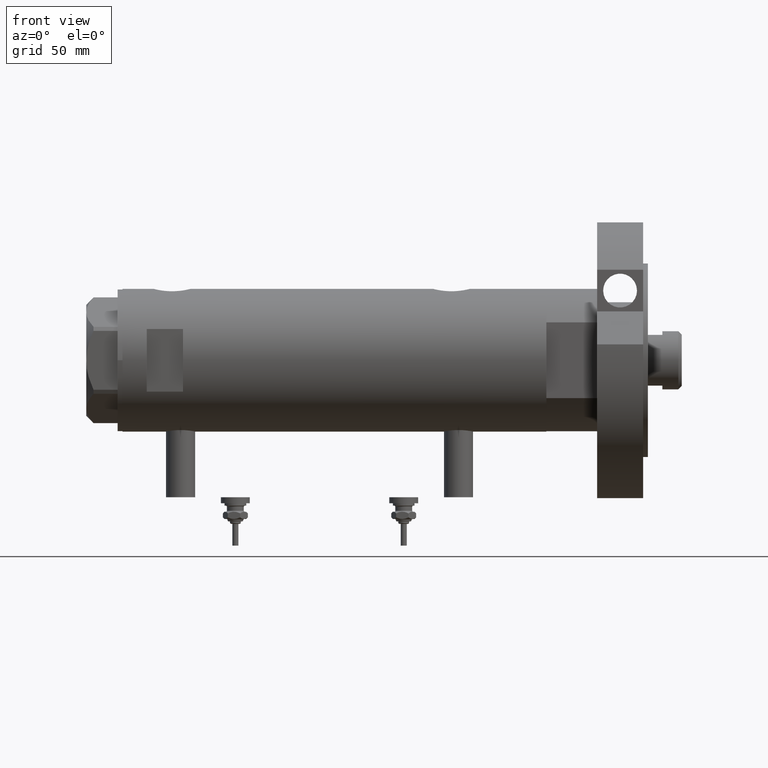
[diagram: clean part render]
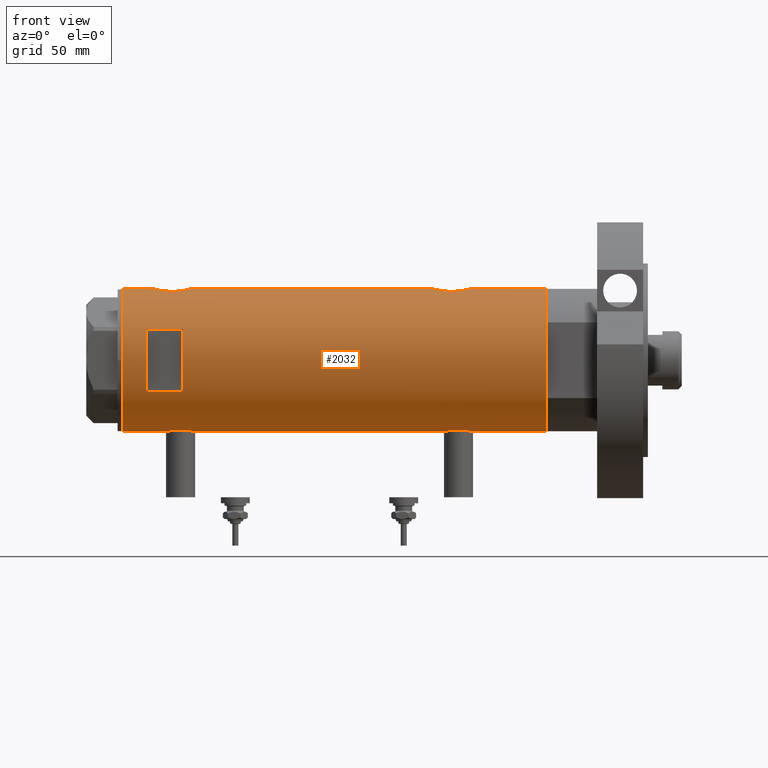
[diagram: same view with one face highlighted and labeled with its STEP entity id]
A machine part, front view. The second image highlights one B-rep face of the part: STEP entity #2032.
In plain terms, the highlighted cylindrical surface (partial cylindrical patch) has radius 29.5 mm, axis along (-1, -0, 0).
Its self-contained STEP definition (entity closure, byte-faithful):
#118 = EDGE_CURVE ( 'NONE', #7479, #4379, #1643, .T. ) ;
#137 = CARTESIAN_POINT ( 'NONE',  ( 29.50000000000000355, 0.000000000000000000, -87.59999999999999432 ) ) ;
#222 = EDGE_LOOP ( 'NONE', ( #899, #1543, #1322, #2964 ) ) ;
#269 = CARTESIAN_POINT ( 'NONE',  ( 28.77424839213763264, -6.509286280845835826, -52.15781251605955759 ) ) ;
#286 = VERTEX_POINT ( 'NONE', #5263 ) ;
#294 = CARTESIAN_POINT ( 'NONE',  ( 28.86290657878784671, -6.099358034152101204, 62.72869329957394058 ) ) ;
#300 = CARTESIAN_POINT ( 'NONE',  ( -29.12379578281188586, -4.705261494361431041, 59.46612042279722488 ) ) ;
#302 = CARTESIAN_POINT ( 'NONE',  ( -28.83028160285195440, -6.250189016175739631, -50.89032996785321927 ) ) ;
#308 = CARTESIAN_POINT ( 'NONE',  ( 29.50000000000000355, -1.363453657738827866E-15, -55.89999999999999858 ) ) ;
#311 = CARTESIAN_POINT ( 'NONE',  ( -29.46613381094001483, -1.427468570127977010, -45.21172459459599935 ) ) ;
#331 = CARTESIAN_POINT ( 'NONE',  ( 29.33743940633120673, -3.100990836771692294, 73.93327512439066140 ) ) ;
#336 = CARTESIAN_POINT ( 'NONE',  ( -28.85437274499025762, -6.138402965889063978, 62.37243403294917954 ) ) ;
#344 = CARTESIAN_POINT ( 'NONE',  ( 28.77541267587658780, -6.504036106227640168, -44.63371449864085605 ) ) ;
#347 = CARTESIAN_POINT ( 'NONE',  ( -29.25361239466581154, -3.820294933898107814, -46.33642010285959145 ) ) ;
#373 = CARTESIAN_POINT ( 'NONE',  ( 29.08168479815707386, -4.954011967599708299, 61.46372631484727833 ) ) ;
#385 = CARTESIAN_POINT ( 'NONE',  ( 28.89374408016308848, -5.952042782108791563, -43.83015462974033483 ) ) ;
#395 = VERTEX_POINT ( 'NONE', #4335 ) ;
#417 = CARTESIAN_POINT ( 'NONE',  ( -29.50000000000000355, -1.989795151372050188E-15, -45.04999999999999005 ) ) ;
#470 = DIRECTION ( 'NONE',  ( 0.000000000000000000, 0.000000000000000000, 1.000000000000000000 ) ) ;
#493 = CARTESIAN_POINT ( 'NONE',  ( 0.000000000000000000, 0.000000000000000000, -87.59999999999999432 ) ) ;
#571 = ORIENTED_EDGE ( 'NONE', *, *, #3206, .F. ) ;
#647 = LINE ( 'NONE', #2968, #5458 ) ;
#683 = CARTESIAN_POINT ( 'NONE',  ( -28.84137202824161861, -6.198846007008993908, -52.12388261123874145 ) ) ;
#800 = CARTESIAN_POINT ( 'NONE',  ( 29.43922820968270671, -1.954457150219038208, -41.14210652754225350 ) ) ;
#839 = CARTESIAN_POINT ( 'NONE',  ( 28.59279484545186989, -7.260293545345763100, -50.34406557984473096 ) ) ;
#852 = CARTESIAN_POINT ( 'NONE',  ( -29.50000000000000355, 3.612708057484692393E-15, 87.59999999999999432 ) ) ;
#869 = CARTESIAN_POINT ( 'NONE',  ( -29.50000000000000355, 3.612708057484692393E-15, -87.59999999999999432 ) ) ;
#872 = CARTESIAN_POINT ( 'NONE',  ( 28.72051071455672044, -6.739402597165490505, 63.77281026296248712 ) ) ;
#888 = CARTESIAN_POINT ( 'NONE',  ( 29.31438578683259522, -3.335040812377227937, -55.13547276843772238 ) ) ;
#899 = ORIENTED_EDGE ( 'NONE', *, *, #2767, .F. ) ;
#915 = CARTESIAN_POINT ( 'NONE',  ( -29.25427426731712544, -3.815048240656437439, 58.63259231846663511 ) ) ;
#946 = CARTESIAN_POINT ( 'NONE',  ( 28.54678862679669749, -7.438514536388028731, 68.08958274320792725 ) ) ;
#960 = CARTESIAN_POINT ( 'NONE',  ( 29.40378957563275009, -2.423455993307766398, -41.28550539884014370 ) ) ;
#971 = EDGE_CURVE ( 'NONE', #2556, #4912, #4536, .T. ) ;
#990 = CARTESIAN_POINT ( 'NONE',  ( 28.86327882047615034, -6.097569254709694242, 71.47367090911446041 ) ) ;
#994 = CARTESIAN_POINT ( 'NONE',  ( 29.50000000000000355, 0.000000000000000000, -87.59999999999999432 ) ) ;
#996 = CARTESIAN_POINT ( 'NONE',  ( -29.21016169868140366, -4.135295259288787051, 68.30390088086507205 ) ) ;
#1032 = DIRECTION ( 'NONE',  ( 1.000000000000000000, 0.000000000000000000, 0.000000000000000000 ) ) ;
#1066 = CARTESIAN_POINT ( 'NONE',  ( -29.08006251441183565, -4.961575945539723698, 67.40618502052524263 ) ) ;
#1101 = ORIENTED_EDGE ( 'NONE', *, *, #6471, .F. ) ;
#1138 = DIRECTION ( 'NONE',  ( 0.000000000000000000, 0.000000000000000000, 1.000000000000000000 ) ) ;
#1147 = DIRECTION ( 'NONE',  ( 0.000000000000000000, 0.000000000000000000, 1.000000000000000000 ) ) ;
#1187 = AXIS2_PLACEMENT_3D ( 'NONE', #493, #6383, #2817 ) ;
#1204 = VERTEX_POINT ( 'NONE', #4288 ) ;
#1258 = LINE ( 'NONE', #137, #3866 ) ;
#1322 = ORIENTED_EDGE ( 'NONE', *, *, #6491, .F. ) ;
#1376 = CARTESIAN_POINT ( 'NONE',  ( -29.45797511864983420, -1.625450914296658667, 57.55094872469953060 ) ) ;
#1382 = CARTESIAN_POINT ( 'NONE',  ( 29.50000000000000711, -0.4976091310423220726, -55.89999999999999858 ) ) ;
#1402 = ORIENTED_EDGE ( 'NONE', *, *, #6194, .T. ) ;
#1417 = CARTESIAN_POINT ( 'NONE',  ( 28.53399451186755442, -7.487442594623181513, -47.90102514498886421 ) ) ;
#1433 = CARTESIAN_POINT ( 'NONE',  ( 29.50000000000000355, 0.000000000000000000, -87.59999999999999432 ) ) ;
#1444 = CARTESIAN_POINT ( 'NONE',  ( 28.54347630091234933, -7.451827970232792531, 66.11943218216043761 ) ) ;
#1449 = CARTESIAN_POINT ( 'NONE',  ( -29.33428005013169226, -3.127775714777723426, 58.18506796127407199 ) ) ;
#1463 = LINE ( 'NONE', #3715, #3743 ) ;
#1496 = CARTESIAN_POINT ( 'NONE',  ( -29.38738983525000137, -2.582042051636497693, 57.90464828404618913 ) ) ;
#1501 = CARTESIAN_POINT ( 'NONE',  ( 29.26166309680877475, -3.765013078516705303, -54.90510232053061657 ) ) ;
#1524 = CARTESIAN_POINT ( 'NONE',  ( 29.40305664607911140, -2.432276947006145829, 59.98852198993411378 ) ) ;
#1530 = CARTESIAN_POINT ( 'NONE',  ( -28.99856997507319534, -5.420860550814439627, 60.46276987854197671 ) ) ;
#1539 = CARTESIAN_POINT ( 'NONE',  ( -29.14490888978862415, -4.565669626908229084, -47.02701820123782994 ) ) ;
#1543 = ORIENTED_EDGE ( 'NONE', *, *, #4383, .F. ) ;
#1557 = CARTESIAN_POINT ( 'NONE',  ( 29.31438578683260232, -3.335040812377226604, 60.36452723156224920 ) ) ;
#1600 = CARTESIAN_POINT ( 'NONE',  ( 29.31311917412636348, -3.322476152549144413, 73.82842985264291258 ) ) ;
#1603 = VERTEX_POINT ( 'NONE', #2215 ) ;
#1612 = VECTOR ( 'NONE', #2369, 1000.000000000000000 ) ;
#1643 = LINE ( 'NONE', #994, #2427 ) ;
#1673 = CARTESIAN_POINT ( 'NONE',  ( -29.45566469296798928, -1.628675872921093726, 69.63756032628675996 ) ) ;
#1734 = B_SPLINE_CURVE_WITH_KNOTS ( 'NONE', 3,
 ( #4341, #3346, #3819, #6684, #2770, #331, #1600, #5110, #6268, #2133, #2660, #3266, #4997, #3847, #990, #3231, #4428, #2700, #4457, #5689, #946, #5614, #4385, #6830, #1444, #5577, #6113, #872, #6184, #294, #7340, #2100, #6763, #5042, #373, #7377, #3197, #6791, #1557, #1524, #3886, #2626, #7298, #6223 ),
 .UNSPECIFIED., .F., .F.,
 ( 4, 2, 2, 2, 2, 2, 2, 2, 2, 2, 2, 2, 2, 2, 2, 2, 2, 2, 2, 2, 2, 4 ),
 ( 0.02354540741801906811, 0.02501659793198017859, 0.02648778844594128906, 0.02722338370292184256, 0.02795897895990239954, 0.02943016947386351001, 0.03016576473084408433, 0.03090135998782465171, 0.03237255050178579341, 0.03384374101574693511, 0.03457933627272750943, 0.03531493152970807681, 0.03678612204366921851, 0.03825731255763036021, 0.03972850307159149497, 0.04046409832857204847, 0.04119969358555261585, 0.04193528884253318323, 0.04267088409951375061, 0.04414207461347488537, 0.04561326512743602707, 0.04708445564139716183 ),
 .UNSPECIFIED. ) ;
#1833 = CARTESIAN_POINT ( 'NONE',  ( -28.87532468301956357, -6.038983942005355487, -52.92329367688535768 ) ) ;
#1835 = ORIENTED_EDGE ( 'NONE', *, *, #7114, .F. ) ;
#1871 = CARTESIAN_POINT ( 'NONE',  ( 0.000000000000000000, 0.000000000000000000, 77.60000000000002274 ) ) ;
#1911 = CARTESIAN_POINT ( 'NONE',  ( 29.50000000000000355, -1.363453657738827866E-15, -55.89999999999999858 ) ) ;
#1915 = CARTESIAN_POINT ( 'NONE',  ( -28.96147498926092112, -5.613273026676372623, -54.07892698342580218 ) ) ;
#1950 = DIRECTION ( 'NONE',  ( -0.000000000000000000, 0.000000000000000000, -1.000000000000000000 ) ) ;
#1953 = CARTESIAN_POINT ( 'NONE',  ( 28.53070445389874976, -7.499926890973428684, -48.15046579487084699 ) ) ;
#2002 = CARTESIAN_POINT ( 'NONE',  ( 28.59337635119608123, -7.258007499531542450, -46.44783774348638872 ) ) ;
#2013 = VERTEX_POINT ( 'NONE', #4500 ) ;
#2032 = ADVANCED_FACE ( 'NONE', ( #6160, #6271 ), #2662, .T. ) ;
#2036 = CARTESIAN_POINT ( 'NONE',  ( 28.54347630091233867, -7.451827970232786313, -49.38056781783959792 ) ) ;
#2045 = CARTESIAN_POINT ( 'NONE',  ( 0.000000000000000000, 0.000000000000000000, 62.60000000000011511 ) ) ;
#2051 = CIRCLE ( 'NONE', #1187, 29.50000000000000355 ) ;
#2074 = CARTESIAN_POINT ( 'NONE',  ( -29.37136442049237317, -2.777615426151012201, -45.68634887377884013 ) ) ;
#2100 = CARTESIAN_POINT ( 'NONE',  ( 28.95592074821773210, -5.641779806288288235, 62.15226504197970314 ) ) ;
#2106 = AXIS2_PLACEMENT_3D ( 'NONE', #2045, #3220, #6050 ) ;
#2107 = CARTESIAN_POINT ( 'NONE',  ( -29.37055817176824490, -2.766456155496578084, 57.99186392411088775 ) ) ;
#2111 = VECTOR ( 'NONE', #3090, 1000.000000000000000 ) ;
#2133 = CARTESIAN_POINT ( 'NONE',  ( 29.14531914445117167, -4.579221598645962565, 73.05990232992806455 ) ) ;
#2137 = CARTESIAN_POINT ( 'NONE',  ( -29.41741605749265887, -2.213861184585002917, 69.44831174451371680 ) ) ;
#2169 = CARTESIAN_POINT ( 'NONE',  ( -28.96072448608914840, -5.617106371651694907, 66.37082731660440515 ) ) ;
#2207 = CARTESIAN_POINT ( 'NONE',  ( 29.50000000000000355, -8.867894669064240341E-21, 74.59999999999999432 ) ) ;
#2215 = CARTESIAN_POINT ( 'NONE',  ( 12.96148139681573319, -26.49999999999998934, 77.60000000000002274 ) ) ;
#2220 = CARTESIAN_POINT ( 'NONE',  ( 29.50000000000000355, -8.867894669064240341E-21, -40.89999999999999858 ) ) ;
#2228 = B_SPLINE_CURVE_WITH_KNOTS ( 'NONE', 3,
 ( #4435, #3703, #6120, #1376, #5620, #1496, #2107, #1449, #6767, #915, #7227, #300, #2631, #1530, #2706, #4964, #5047, #5581, #336, #3851, #5697, #3893, #6380, #2244, #5230, #2813, #2169, #5118, #4579, #1066, #4505, #6228, #996, #6912, #4041, #6306, #2137, #2742, #1673, #4465, #3939, #6949, #3313 ),
 .UNSPECIFIED., .F., .F.,
 ( 4, 2, 2, 2, 2, 2, 2, 2, 2, 1, 2, 2, 2, 2, 2, 2, 2, 2, 2, 2, 2, 4 ),
 ( 0.01959598605283711936, 0.02082041500883364399, 0.02204484396483016861, 0.02265705844282843093, 0.02326927292082668977, 0.02449370187682321787, 0.02571813083281974943, 0.02694255978881627753, 0.02755477426681453290, 0.02816698874481278828, 0.02877920322281106447, 0.02939141770080933719, 0.03061584665680588957, 0.03184027561280244195, 0.03306470456879899433, 0.03367691904679727399, 0.03428913352479554671, 0.03551356248079207134, 0.03673799143678858903, 0.03735020591478684787, 0.03796242039278510672, 0.03918684934878163828 ),
 .UNSPECIFIED. ) ;
#2244 = CARTESIAN_POINT ( 'NONE',  ( -28.83909499632370199, -6.209928350489659188, 64.41617781082960903 ) ) ;
#2369 = DIRECTION ( 'NONE',  ( 0.000000000000000000, 0.000000000000000000, 1.000000000000000000 ) ) ;
#2427 = VECTOR ( 'NONE', #6187, 1000.000000000000000 ) ;
#2514 = CARTESIAN_POINT ( 'NONE',  ( -29.50000000000000355, 3.612708057484692393E-15, -87.59999999999999432 ) ) ;
#2550 = CARTESIAN_POINT ( 'NONE',  ( -29.05872136210574297, -5.084685578900233871, -47.65990008091242203 ) ) ;
#2556 = VERTEX_POINT ( 'NONE', #5715 ) ;
#2558 = CARTESIAN_POINT ( 'NONE',  ( 29.14531914445117522, -4.579221598645967006, -42.44009767007190703 ) ) ;
#2604 = CARTESIAN_POINT ( 'NONE',  ( 28.86290657878785737, -6.099358034152089658, -52.77130670042607363 ) ) ;
#2626 = CARTESIAN_POINT ( 'NONE',  ( 29.48742104091791560, -0.9879539515379935910, 59.64904301646021167 ) ) ;
#2631 = CARTESIAN_POINT ( 'NONE',  ( -29.07948744859177026, -4.968520850090769159, 59.78663632621105961 ) ) ;
#2637 = CARTESIAN_POINT ( 'NONE',  ( 28.95619957017310497, -5.640369376407877056, -43.45060273509821513 ) ) ;
#2660 = CARTESIAN_POINT ( 'NONE',  ( 29.08294968506023181, -4.955368226349210481, 72.75096718198464885 ) ) ;
#2662 = CYLINDRICAL_SURFACE ( 'NONE', #3305, 29.50000000000000355 ) ;
#2670 = CARTESIAN_POINT ( 'NONE',  ( 29.14351131874355261, -4.576283785862462317, -54.34705324848517449 ) ) ;
#2677 = EDGE_CURVE ( 'NONE', #6694, #1603, #3597, .T. ) ;
#2700 = CARTESIAN_POINT ( 'NONE',  ( 28.62986945670069261, -7.114680680403731472, 69.52393776006691439 ) ) ;
#2706 = CARTESIAN_POINT ( 'NONE',  ( -28.96147498926091046, -5.613273026676365518, 60.82107301657418930 ) ) ;
#2712 = CARTESIAN_POINT ( 'NONE',  ( 28.98816846638396072, -5.474212100855873508, -43.26747840116693311 ) ) ;
#2716 = CARTESIAN_POINT ( 'NONE',  ( -29.50000000000000355, -1.989795151372050188E-15, -45.04999999999999005 ) ) ;
#2742 = CARTESIAN_POINT ( 'NONE',  ( -29.43130053621386111, -2.021711243143687664, 69.51755045960182144 ) ) ;
#2764 = ORIENTED_EDGE ( 'NONE', *, *, #971, .F. ) ;
#2767 = EDGE_CURVE ( 'NONE', #6003, #6694, #7098, .T. ) ;
#2770 = CARTESIAN_POINT ( 'NONE',  ( 29.40378957563274298, -2.423455993307769951, 74.21449460115982788 ) ) ;
#2813 = CARTESIAN_POINT ( 'NONE',  ( -28.89828397447510255, -5.929977241120604425, 65.61611952241995027 ) ) ;
#2817 = DIRECTION ( 'NONE',  ( 1.000000000000000000, 0.000000000000000000, 0.000000000000000000 ) ) ;
#2819 = VECTOR ( 'NONE', #470, 1000.000000000000000 ) ;
#2825 = VERTEX_POINT ( 'NONE', #852 ) ;
#2964 = ORIENTED_EDGE ( 'NONE', *, *, #2677, .F. ) ;
#2967 = CARTESIAN_POINT ( 'NONE',  ( -28.89999183068148625, -5.919812056825922042, -53.31500238835418060 ) ) ;
#2968 = CARTESIAN_POINT ( 'NONE',  ( -29.50000000000000355, 3.612708057484692393E-15, -87.59999999999999432 ) ) ;
#2992 = CARTESIAN_POINT ( 'NONE',  ( -29.43333839972900634, -2.017691896334575574, -57.22935989047839200 ) ) ;
#2994 = DIRECTION ( 'NONE',  ( 0.000000000000000000, 0.000000000000000000, 1.000000000000000000 ) ) ;
#3090 = DIRECTION ( 'NONE',  ( -0.000000000000000000, -0.000000000000000000, -1.000000000000000000 ) ) ;
#3131 = CIRCLE ( 'NONE', #7426, 29.50000000000000355 ) ;
#3137 = CIRCLE ( 'NONE', #6691, 29.50000000000000355 ) ;
#3167 = CARTESIAN_POINT ( 'NONE',  ( 29.26065241255352589, -3.756597382275444819, -41.90395565180811133 ) ) ;
#3197 = CARTESIAN_POINT ( 'NONE',  ( 29.17410189149616428, -4.377709617224024186, 61.00524172523977740 ) ) ;
#3198 = ORIENTED_EDGE ( 'NONE', *, *, #6752, .F. ) ;
#3201 = CARTESIAN_POINT ( 'NONE',  ( 0.000000000000000000, 0.000000000000000000, -87.59999999999999432 ) ) ;
#3206 = EDGE_CURVE ( 'NONE', #5723, #4379, #6244, .T. ) ;
#3210 = CARTESIAN_POINT ( 'NONE',  ( 29.43916859571211120, -1.954329820671499407, -55.65764479242087504 ) ) ;
#3220 = DIRECTION ( 'NONE',  ( -0.000000000000000000, -4.625929269271487689E-15, 1.000000000000000000 ) ) ;
#3231 = CARTESIAN_POINT ( 'NONE',  ( 28.77541267587657003, -6.504036106227640168, 70.86628550135910132 ) ) ;
#3237 = CARTESIAN_POINT ( 'NONE',  ( -28.83909499632370199, -6.209928350489668958, -50.48382218917042508 ) ) ;
#3245 = CARTESIAN_POINT ( 'NONE',  ( -29.12311479234994849, -4.702282052053738504, -47.17776471113516124 ) ) ;
#3266 = CARTESIAN_POINT ( 'NONE',  ( 28.98816846638396427, -5.474212100855878838, 72.23252159883305978 ) ) ;
#3278 = CARTESIAN_POINT ( 'NONE',  ( 28.62983003203746080, -7.114781472982439681, -50.82273058853737524 ) ) ;
#3305 = AXIS2_PLACEMENT_3D ( 'NONE', #3201, #6186, #1032 ) ;
#3313 = CARTESIAN_POINT ( 'NONE',  ( -29.50000000000000355, -3.685106651658548747E-16, 69.84999999999999432 ) ) ;
#3346 = CARTESIAN_POINT ( 'NONE',  ( 29.50000000000001066, -0.4905639552620957300, 74.59999999999998010 ) ) ;
#3405 = LINE ( 'NONE', #3513, #2819 ) ;
#3432 = VECTOR ( 'NONE', #5934, 1000.000000000000000 ) ;
#3495 = CARTESIAN_POINT ( 'NONE',  ( -29.31475612970062627, -3.305202271067059883, -56.60847868843855224 ) ) ;
#3513 = CARTESIAN_POINT ( 'NONE',  ( -29.50000000000000355, 3.612708057484692393E-15, -87.59999999999999432 ) ) ;
#3579 = CARTESIAN_POINT ( 'NONE',  ( -29.50000000000000711, -0.4084468586314279337, -57.55000000000000426 ) ) ;
#3597 = LINE ( 'NONE', #4216, #3432 ) ;
#3646 = ORIENTED_EDGE ( 'NONE', *, *, #4846, .F. ) ;
#3703 = CARTESIAN_POINT ( 'NONE',  ( -29.50000000000000711, -0.4084468586314314309, 57.35000000000000142 ) ) ;
#3708 = CARTESIAN_POINT ( 'NONE',  ( 28.55627543367308618, -7.402134446380870259, -47.16780349681763340 ) ) ;
#3715 = CARTESIAN_POINT ( 'NONE',  ( 29.50000000000000355, 0.000000000000000000, -87.59999999999999432 ) ) ;
#3721 = CARTESIAN_POINT ( 'NONE',  ( -29.50000000000000355, 3.612706708267620518E-15, -57.55000000000000426 ) ) ;
#3743 = VECTOR ( 'NONE', #4905, 1000.000000000000000 ) ;
#3745 = CARTESIAN_POINT ( 'NONE',  ( 28.53064705443910043, -7.500145243772282200, -48.89244703291117844 ) ) ;
#3790 = CARTESIAN_POINT ( 'NONE',  ( 28.54678862679669038, -7.438514536388029619, -47.41041725679210828 ) ) ;
#3819 = CARTESIAN_POINT ( 'NONE',  ( 29.48775985681159284, -0.9798361908152555255, 74.55230443881325186 ) ) ;
#3847 = CARTESIAN_POINT ( 'NONE',  ( 28.89374408016309914, -5.952042782108793340, 71.66984537025965096 ) ) ;
#3851 = CARTESIAN_POINT ( 'NONE',  ( -28.84137202824161150, -6.198846007008987691, 62.77611738876123582 ) ) ;
#3858 = CARTESIAN_POINT ( 'NONE',  ( 29.31311917412636348, -3.322476152549152406, -41.67157014735705189 ) ) ;
#3866 = VECTOR ( 'NONE', #2994, 1000.000000000000000 ) ;
#3886 = CARTESIAN_POINT ( 'NONE',  ( 29.43916859571210409, -1.954329820671502960, 59.84235520757910365 ) ) ;
#3893 = CARTESIAN_POINT ( 'NONE',  ( -28.83034328164762528, -6.249904501012242264, 63.39085460435941854 ) ) ;
#3936 = ORIENTED_EDGE ( 'NONE', *, *, #6843, .T. ) ;
#3939 = CARTESIAN_POINT ( 'NONE',  ( -29.49128673965871172, -0.8227026017531454682, 69.80924441072093600 ) ) ;
#4041 = CARTESIAN_POINT ( 'NONE',  ( -29.33479068874799722, -3.136645782783865410, 69.02155254614469015 ) ) ;
#4078 = CARTESIAN_POINT ( 'NONE',  ( -29.33428005013168871, -3.127775714777722982, -56.71493203872592659 ) ) ;
#4088 = EDGE_LOOP ( 'NONE', ( #1101, #3936, #5845, #571, #4255, #1835, #1402, #3198, #6021, #3646, #4572, #2764 ) ) ;
#4118 = CARTESIAN_POINT ( 'NONE',  ( -28.91427970886711307, -5.849862889315922132, -53.50993133128852008 ) ) ;
#4174 = EDGE_CURVE ( 'NONE', #4912, #2013, #3405, .T. ) ;
#4216 = CARTESIAN_POINT ( 'NONE',  ( 12.96148139681573319, -26.49999999999999645, -87.59999999999999432 ) ) ;
#4241 = LINE ( 'NONE', #6580, #2111 ) ;
#4255 = ORIENTED_EDGE ( 'NONE', *, *, #5828, .T. ) ;
#4280 = CARTESIAN_POINT ( 'NONE',  ( 29.05028789344173745, -5.134328181356786480, -53.87246457606267569 ) ) ;
#4288 = CARTESIAN_POINT ( 'NONE',  ( -12.96148139681573319, -26.49999999999998934, 77.60000000000002274 ) ) ;
#4324 = EDGE_CURVE ( 'NONE', #395, #2825, #6469, .T. ) ;
#4335 = CARTESIAN_POINT ( 'NONE',  ( -29.50000000000000355, -3.685106651658548747E-16, 69.84999999999999432 ) ) ;
#4341 = CARTESIAN_POINT ( 'NONE',  ( 29.50000000000000355, -8.867894669064240341E-21, 74.59999999999999432 ) ) ;
#4355 = CARTESIAN_POINT ( 'NONE',  ( -29.43130053621386111, -2.021711243143700543, -45.38244954039817003 ) ) ;
#4379 = VERTEX_POINT ( 'NONE', #1911 ) ;
#4383 = EDGE_CURVE ( 'NONE', #1204, #6003, #4241, .T. ) ;
#4385 = CARTESIAN_POINT ( 'NONE',  ( 28.53070445389874621, -7.499926890973428684, 67.34953420512916011 ) ) ;
#4397 = CARTESIAN_POINT ( 'NONE',  ( 29.50000000000000355, -8.867894669064240341E-21, -40.89999999999999858 ) ) ;
#4428 = CARTESIAN_POINT ( 'NONE',  ( 28.72151714661535848, -6.735173278284142917, 70.43640470570873902 ) ) ;
#4435 = CARTESIAN_POINT ( 'NONE',  ( -29.50000000000000355, 3.612706708236066082E-15, 57.34999999999998721 ) ) ;
#4437 = CARTESIAN_POINT ( 'NONE',  ( 12.96148139681573319, -26.49999999999998934, 62.59999999999998721 ) ) ;
#4457 = CARTESIAN_POINT ( 'NONE',  ( 28.59337635119608123, -7.258007499531540674, 69.05216225651359707 ) ) ;
#4465 = CARTESIAN_POINT ( 'NONE',  ( -29.46613381094001127, -1.427468570127964798, 69.68827540540398502 ) ) ;
#4500 = CARTESIAN_POINT ( 'NONE',  ( -29.50000000000000355, 3.612706708236066082E-15, 57.34999999999998721 ) ) ;
#4505 = CARTESIAN_POINT ( 'NONE',  ( -29.12311479234994493, -4.702282052053730510, 67.72223528886479471 ) ) ;
#4536 = B_SPLINE_CURVE_WITH_KNOTS ( 'NONE', 3,
 ( #3721, #3579, #7020, #5917, #2992, #4615, #6950, #4078, #3495, #5841, #6255, #7251, #6865, #5142, #1915, #4118, #2967, #1833, #5312, #683, #6506, #5550, #302, #3237, #5006, #7347, #6654, #5461, #2550, #6085, #3245, #1539, #6169, #347, #7354, #2074, #4942, #4355, #7314, #311, #5518, #5591, #2716 ),
 .UNSPECIFIED., .F., .F.,
 ( 4, 2, 2, 2, 2, 2, 2, 2, 2, 1, 2, 2, 2, 2, 2, 2, 2, 2, 2, 2, 2, 4 ),
 ( 0.01959598605283713324, 0.02082041500883365093, 0.02204484396483016515, 0.02265705844282842399, 0.02326927292082667936, 0.02449370187682318317, 0.02571813083281968698, 0.02694255978881619079, 0.02755477426681445310, 0.02816698874481271542, 0.02877920322281097426, 0.02939141770080923657, 0.03061584665680577855, 0.03184027561280232399, 0.03306470456879886943, 0.03367691904679714215, 0.03428913352479541488, 0.03551356248079197420, 0.03673799143678854046, 0.03735020591478682705, 0.03796242039278510672, 0.03918684934878167297 ),
 .UNSPECIFIED. ) ;
#4572 = ORIENTED_EDGE ( 'NONE', *, *, #4174, .F. ) ;
#4579 = CARTESIAN_POINT ( 'NONE',  ( -29.05872136210575363, -5.084685578900223213, 67.24009991908759787 ) ) ;
#4615 = CARTESIAN_POINT ( 'NONE',  ( -29.38738983525001558, -2.582042051636497693, -56.99535171595380945 ) ) ;
#4846 = EDGE_CURVE ( 'NONE', #2013, #395, #2228, .T. ) ;
#4905 = DIRECTION ( 'NONE',  ( 0.000000000000000000, 0.000000000000000000, 1.000000000000000000 ) ) ;
#4912 = VERTEX_POINT ( 'NONE', #417 ) ;
#4923 = VERTEX_POINT ( 'NONE', #2207 ) ;
#4939 = CARTESIAN_POINT ( 'NONE',  ( 28.89374847711160399, -5.952001739005051917, -52.96983981079635129 ) ) ;
#4942 = CARTESIAN_POINT ( 'NONE',  ( -29.41741605749266952, -2.213861184585005137, -45.45168825548628178 ) ) ;
#4964 = CARTESIAN_POINT ( 'NONE',  ( -28.91427970886709886, -5.849862889315915915, 61.39006866871145718 ) ) ;
#4970 = CARTESIAN_POINT ( 'NONE',  ( 28.98740664105171305, -5.478212189394655596, -53.52819516185792281 ) ) ;
#4997 = CARTESIAN_POINT ( 'NONE',  ( 28.95619957017310853, -5.640369376407880608, 72.04939726490175644 ) ) ;
#5006 = CARTESIAN_POINT ( 'NONE',  ( -28.87288655002252113, -6.050870399762851015, -49.68249459278194990 ) ) ;
#5042 = CARTESIAN_POINT ( 'NONE',  ( 29.05028789344172324, -5.134328181356783816, 61.62753542393731010 ) ) ;
#5047 = CARTESIAN_POINT ( 'NONE',  ( -28.89999183068147559, -5.919812056825914048, 61.58499761164581798 ) ) ;
#5095 = VERTEX_POINT ( 'NONE', #5679 ) ;
#5110 = CARTESIAN_POINT ( 'NONE',  ( 29.26065241255351523, -3.756597382275435493, 73.59604434819190999 ) ) ;
#5118 = CARTESIAN_POINT ( 'NONE',  ( -28.99772237063718094, -5.425436006677728074, 66.72962674552641715 ) ) ;
#5142 = CARTESIAN_POINT ( 'NONE',  ( -28.99856997507319534, -5.420860550814444956, -54.43723012145802187 ) ) ;
#5197 = CARTESIAN_POINT ( 'NONE',  ( 0.000000000000000000, 0.000000000000000000, 87.59999999999999432 ) ) ;
#5230 = CARTESIAN_POINT ( 'NONE',  ( -28.87288655002252113, -6.050870399762837692, 65.21750540721804157 ) ) ;
#5263 = CARTESIAN_POINT ( 'NONE',  ( 29.50000000000000355, -2.136503572369537054E-15, 59.59999999999999432 ) ) ;
#5312 = CARTESIAN_POINT ( 'NONE',  ( -28.85437274499025406, -6.138402965889069307, -52.52756596705081904 ) ) ;
#5390 = DIRECTION ( 'NONE',  ( 1.000000000000000000, 0.000000000000000000, 0.000000000000000000 ) ) ;
#5458 = VECTOR ( 'NONE', #1147, 1000.000000000000000 ) ;
#5461 = CARTESIAN_POINT ( 'NONE',  ( -28.99772237063718094, -5.425436006677739620, -48.17037325447357432 ) ) ;
#5469 = CARTESIAN_POINT ( 'NONE',  ( 28.72151714661536204, -6.735173278284145582, -45.06359529429126098 ) ) ;
#5515 = CARTESIAN_POINT ( 'NONE',  ( 28.72051071455671334, -6.739402597165489617, -51.72718973703752710 ) ) ;
#5518 = CARTESIAN_POINT ( 'NONE',  ( -29.49128673965872238, -0.8227026017531590130, -45.09075558927904126 ) ) ;
#5550 = CARTESIAN_POINT ( 'NONE',  ( -28.83034328164761462, -6.249904501012249369, -51.50914539564058003 ) ) ;
#5555 = CARTESIAN_POINT ( 'NONE',  ( 29.48742104091792982, -0.9879539515379943682, -55.85095698353980964 ) ) ;
#5577 = CARTESIAN_POINT ( 'NONE',  ( 28.59279484545187344, -7.260293545345771982, 65.15593442015531878 ) ) ;
#5581 = CARTESIAN_POINT ( 'NONE',  ( -28.87532468301956712, -6.038983942005351047, 61.97670632311463379 ) ) ;
#5588 = CARTESIAN_POINT ( 'NONE',  ( 29.50000000000001066, -0.4905639552620955079, -40.89999999999999858 ) ) ;
#5591 = CARTESIAN_POINT ( 'NONE',  ( -29.50000000000000711, -0.4141077724969866591, -45.04999999999999005 ) ) ;
#5614 = CARTESIAN_POINT ( 'NONE',  ( 28.53399451186755087, -7.487442594623177961, 67.59897485501115000 ) ) ;
#5620 = CARTESIAN_POINT ( 'NONE',  ( -29.43333839972900634, -2.017691896334577351, 57.67064010952157105 ) ) ;
#5625 = CARTESIAN_POINT ( 'NONE',  ( 29.48775985681159284, -0.9798361908152568578, -40.94769556118675524 ) ) ;
#5679 = CARTESIAN_POINT ( 'NONE',  ( 29.50000000000000355, 0.000000000000000000, 87.59999999999999432 ) ) ;
#5689 = CARTESIAN_POINT ( 'NONE',  ( 28.55627543367308618, -7.402134446380869370, 68.33219650318235949 ) ) ;
#5697 = CARTESIAN_POINT ( 'NONE',  ( -28.83260549167351527, -6.239494599049532297, 63.18384915698199933 ) ) ;
#5715 = CARTESIAN_POINT ( 'NONE',  ( -29.50000000000000355, 3.612706708267620518E-15, -57.55000000000000426 ) ) ;
#5723 = VERTEX_POINT ( 'NONE', #2220 ) ;
#5828 = EDGE_CURVE ( 'NONE', #5723, #286, #1258, .T. ) ;
#5841 = CARTESIAN_POINT ( 'NONE',  ( -29.25427426731712188, -3.815048240656438772, -56.26740768153337058 ) ) ;
#5845 = ORIENTED_EDGE ( 'NONE', *, *, #118, .T. ) ;
#5894 = VERTEX_POINT ( 'NONE', #869 ) ;
#5917 = CARTESIAN_POINT ( 'NONE',  ( -29.45797511864983420, -1.625450914296657334, -57.34905127530046087 ) ) ;
#5934 = DIRECTION ( 'NONE',  ( 0.000000000000000000, 0.000000000000000000, 1.000000000000000000 ) ) ;
#6003 = VERTEX_POINT ( 'NONE', #7525 ) ;
#6021 = ORIENTED_EDGE ( 'NONE', *, *, #4324, .F. ) ;
#6040 = CARTESIAN_POINT ( 'NONE',  ( 29.40305664607911140, -2.432276947006147605, -55.51147801006586491 ) ) ;
#6050 = DIRECTION ( 'NONE',  ( 1.776356839400250267E-15, 1.000000000000000000, 4.704334850106595203E-15 ) ) ;
#6082 = CARTESIAN_POINT ( 'NONE',  ( 28.86327882047615034, -6.097569254709688913, -44.02632909088551827 ) ) ;
#6085 = CARTESIAN_POINT ( 'NONE',  ( -29.08006251441182854, -4.961575945539730803, -47.49381497947474884 ) ) ;
#6113 = CARTESIAN_POINT ( 'NONE',  ( 28.62983003203746435, -7.114781472982441457, 64.67726941146263187 ) ) ;
#6120 = CARTESIAN_POINT ( 'NONE',  ( -29.49152014567325253, -0.8152473631539829402, 57.38964705166666391 ) ) ;
#6127 = CARTESIAN_POINT ( 'NONE',  ( 29.17410189149616428, -4.377709617224021521, -54.49475827476019418 ) ) ;
#6160 = FACE_OUTER_BOUND ( 'NONE', #4088, .T. ) ;
#6169 = CARTESIAN_POINT ( 'NONE',  ( -29.21016169868139656, -4.135295259288792380, -46.59609911913489810 ) ) ;
#6184 = CARTESIAN_POINT ( 'NONE',  ( 28.77424839213764329, -6.509286280845849149, 63.34218748394043530 ) ) ;
#6186 = DIRECTION ( 'NONE',  ( 0.000000000000000000, 0.000000000000000000, 1.000000000000000000 ) ) ;
#6187 = DIRECTION ( 'NONE',  ( 0.000000000000000000, 0.000000000000000000, 1.000000000000000000 ) ) ;
#6194 = EDGE_CURVE ( 'NONE', #4923, #5095, #1463, .T. ) ;
#6223 = CARTESIAN_POINT ( 'NONE',  ( 29.50000000000000355, -2.136503572369537054E-15, 59.59999999999999432 ) ) ;
#6228 = CARTESIAN_POINT ( 'NONE',  ( -29.14490888978862770, -4.565669626908225531, 67.87298179876214022 ) ) ;
#6244 = B_SPLINE_CURVE_WITH_KNOTS ( 'NONE', 3,
 ( #4397, #5588, #5625, #800, #960, #6622, #3858, #3167, #6660, #2558, #7236, #2712, #2637, #385, #6082, #344, #5469, #6736, #2002, #3708, #3790, #1417, #1953, #3745, #2036, #839, #3278, #5515, #269, #2604, #4939, #7192, #4970, #4280, #6693, #2670, #6127, #1501, #888, #6040, #3210, #5555, #1382, #308 ),
 .UNSPECIFIED., .F., .F.,
 ( 4, 2, 2, 2, 2, 2, 2, 2, 2, 2, 2, 2, 2, 2, 2, 2, 2, 2, 2, 2, 2, 4 ),
 ( 0.02354540741801906811, 0.02501659793198015777, 0.02648778844594124743, 0.02722338370292179052, 0.02795897895990233362, 0.02943016947386341287, 0.03016576473084396290, 0.03090135998782451293, 0.03237255050178562688, 0.03384374101574673388, 0.03457933627272730126, 0.03531493152970786864, 0.03678612204366901728, 0.03825731255763017286, 0.03972850307159132843, 0.04046409832857190969, 0.04119969358555249095, 0.04193528884253308608, 0.04267088409951366734, 0.04414207461347482986, 0.04561326512743600625, 0.04708445564139716877 ),
 .UNSPECIFIED. ) ;
#6255 = CARTESIAN_POINT ( 'NONE',  ( -29.21108587560690495, -4.128853169727750405, -56.00967276909590709 ) ) ;
#6268 = CARTESIAN_POINT ( 'NONE',  ( 29.23250901027695647, -3.968959760999262176, 73.46846017287660402 ) ) ;
#6271 = FACE_BOUND ( 'NONE', #222, .T. ) ;
#6306 = CARTESIAN_POINT ( 'NONE',  ( -29.37136442049236962, -2.777615426151009981, 69.21365112622116555 ) ) ;
#6380 = CARTESIAN_POINT ( 'NONE',  ( -28.83028160285196151, -6.250189016175732526, 64.00967003214678641 ) ) ;
#6383 = DIRECTION ( 'NONE',  ( 0.000000000000000000, 0.000000000000000000, 1.000000000000000000 ) ) ;
#6469 = LINE ( 'NONE', #2514, #1612 ) ;
#6471 = EDGE_CURVE ( 'NONE', #5894, #2556, #647, .T. ) ;
#6491 = EDGE_CURVE ( 'NONE', #1603, #1204, #3131, .T. ) ;
#6506 = CARTESIAN_POINT ( 'NONE',  ( -28.83260549167351527, -6.239494599049535850, -51.71615084301800636 ) ) ;
#6580 = CARTESIAN_POINT ( 'NONE',  ( -12.96148139681573319, -26.49999999999999645, -87.59999999999999432 ) ) ;
#6622 = CARTESIAN_POINT ( 'NONE',  ( 29.33743940633121028, -3.100990836771690073, -41.56672487560935281 ) ) ;
#6654 = CARTESIAN_POINT ( 'NONE',  ( -28.96072448608914485, -5.617106371651703789, -48.52917268339558632 ) ) ;
#6660 = CARTESIAN_POINT ( 'NONE',  ( 29.23250901027695647, -3.968959760999266617, -42.03153982712338177 ) ) ;
#6684 = CARTESIAN_POINT ( 'NONE',  ( 29.43922820968270671, -1.954457150219034434, 74.35789347245773229 ) ) ;
#6691 = AXIS2_PLACEMENT_3D ( 'NONE', #5197, #1138, #6991 ) ;
#6693 = CARTESIAN_POINT ( 'NONE',  ( 29.08168479815708451, -4.954011967599717181, -54.03627368515270035 ) ) ;
#6694 = VERTEX_POINT ( 'NONE', #4437 ) ;
#6736 = CARTESIAN_POINT ( 'NONE',  ( 28.62986945670068550, -7.114680680403729696, -45.97606223993307850 ) ) ;
#6752 = EDGE_CURVE ( 'NONE', #2825, #5095, #3137, .T. ) ;
#6763 = CARTESIAN_POINT ( 'NONE',  ( 28.98740664105171660, -5.478212189394656484, 61.97180483814205587 ) ) ;
#6767 = CARTESIAN_POINT ( 'NONE',  ( -29.31475612970062983, -3.305202271067059439, 58.29152131156144634 ) ) ;
#6791 = CARTESIAN_POINT ( 'NONE',  ( 29.26166309680877475, -3.765013078516707967, 60.59489767946936212 ) ) ;
#6830 = CARTESIAN_POINT ( 'NONE',  ( 28.53064705443911464, -7.500145243772284864, 66.60755296708883577 ) ) ;
#6843 = EDGE_CURVE ( 'NONE', #5894, #7479, #2051, .T. ) ;
#6865 = CARTESIAN_POINT ( 'NONE',  ( -29.07948744859177381, -4.968520850090770935, -55.11336367378893186 ) ) ;
#6912 = CARTESIAN_POINT ( 'NONE',  ( -29.25361239466581154, -3.820294933898098488, 68.56357989714038581 ) ) ;
#6949 = CARTESIAN_POINT ( 'NONE',  ( -29.50000000000000000, -0.4141077724969871032, 69.85000000000000853 ) ) ;
#6950 = CARTESIAN_POINT ( 'NONE',  ( -29.37055817176825556, -2.766456155496577196, -56.90813607588912504 ) ) ;
#6991 = DIRECTION ( 'NONE',  ( 1.000000000000000000, 0.000000000000000000, 0.000000000000000000 ) ) ;
#7020 = CARTESIAN_POINT ( 'NONE',  ( -29.49152014567325253, -0.8152473631539818300, -57.51035294833331335 ) ) ;
#7098 = CIRCLE ( 'NONE', #2106, 29.50000000000000355 ) ;
#7114 = EDGE_CURVE ( 'NONE', #4923, #286, #1734, .T. ) ;
#7192 = CARTESIAN_POINT ( 'NONE',  ( 28.95592074821772854, -5.641779806288289123, -53.34773495802030396 ) ) ;
#7227 = CARTESIAN_POINT ( 'NONE',  ( -29.21108587560690495, -4.128853169727751293, 58.89032723090409149 ) ) ;
#7236 = CARTESIAN_POINT ( 'NONE',  ( 29.08294968506023537, -4.955368226349206040, -42.74903281801533694 ) ) ;
#7251 = CARTESIAN_POINT ( 'NONE',  ( -29.12379578281189296, -4.705261494361431041, -55.43387957720276660 ) ) ;
#7298 = CARTESIAN_POINT ( 'NONE',  ( 29.49999999999999289, -0.4976091310423251812, 59.59999999999998721 ) ) ;
#7314 = CARTESIAN_POINT ( 'NONE',  ( -29.45566469296797507, -1.628675872921105938, -45.26243967371323862 ) ) ;
#7340 = CARTESIAN_POINT ( 'NONE',  ( 28.89374847711160754, -5.952001739005052805, 62.53016018920364161 ) ) ;
#7347 = CARTESIAN_POINT ( 'NONE',  ( -28.89828397447510255, -5.929977241120610643, -49.28388047758001989 ) ) ;
#7354 = CARTESIAN_POINT ( 'NONE',  ( -29.33479068874800433, -3.136645782783870295, -45.87844745385529421 ) ) ;
#7377 = CARTESIAN_POINT ( 'NONE',  ( 29.14351131874355971, -4.576283785862454323, 61.15294675151478287 ) ) ;
#7426 = AXIS2_PLACEMENT_3D ( 'NONE', #1871, #1950, #5390 ) ;
#7479 = VERTEX_POINT ( 'NONE', #1433 ) ;
#7525 = CARTESIAN_POINT ( 'NONE',  ( -12.96148139681573319, -26.49999999999998934, 62.59999999999998721 ) ) ;